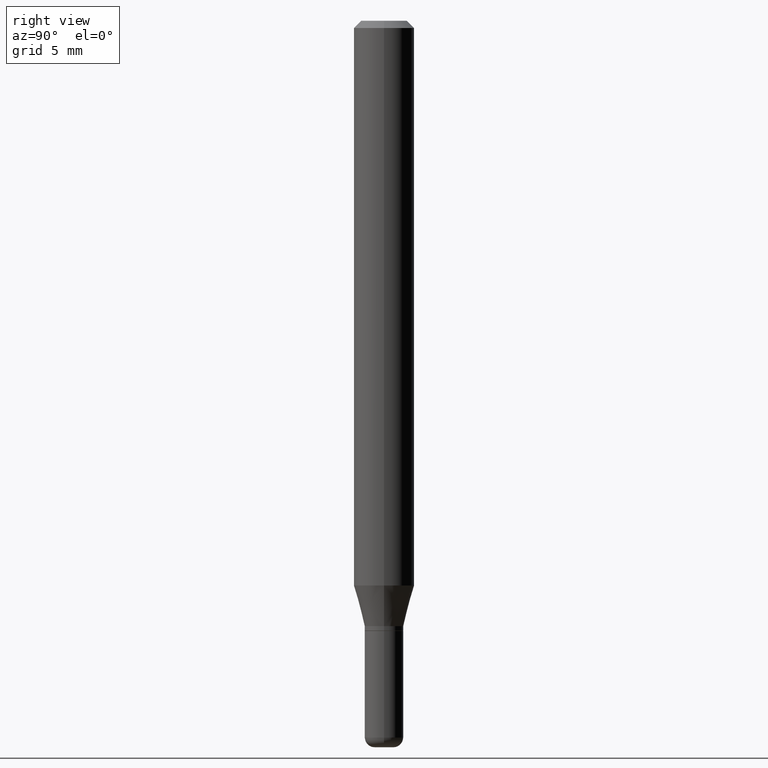
[diagram: clean part render]
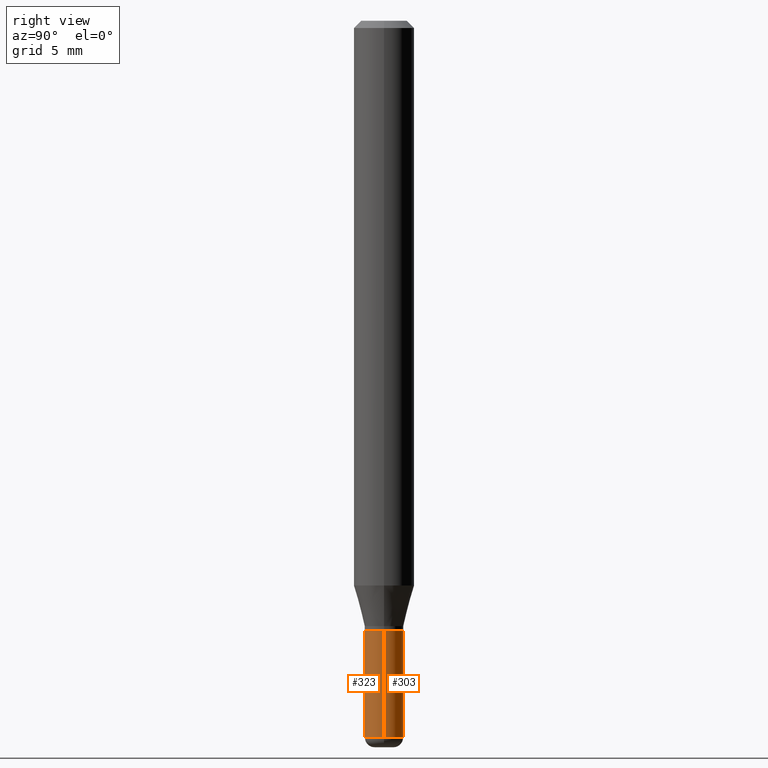
[diagram: same view with one multi-face feature highlighted, each face labeled with its STEP entity id]
A machine part, right view. The highlighted faces form ONE feature: a constant-radius fillet chain: 2 tangent blend faces with common blend radius 1.016 mm. The faces share edges in the B-rep.
Their STEP definitions:
[1] entity #323 (Cylinder):
#9 = CARTESIAN_POINT ( 'NONE',  ( 0.04000000000000003553, -5.446710888595306494E-15, -1.479999999999999982 ) ) ;
#18 = AXIS2_PLACEMENT_3D ( 'NONE', #277, #82, #78 ) ;
#29 = EDGE_CURVE ( 'NONE', #117, #224, #263, .T. ) ;
#38 = VERTEX_POINT ( 'NONE', #143 ) ;
#78 = DIRECTION ( 'NONE',  ( 1.000000000000000000, -6.982962677686259611E-15, 0.000000000000000000 ) ) ;
#82 = DIRECTION ( 'NONE',  ( -2.445468806185136597E-29, 3.491481338843145583E-15, 1.000000000000000000 ) ) ;
#90 = CARTESIAN_POINT ( 'NONE',  ( -0.04000000000000003553, -4.499112339911069567E-15, -1.479999999999999982 ) ) ;
#93 = AXIS2_PLACEMENT_3D ( 'NONE', #297, #175, #453 ) ;
#100 = CYLINDRICAL_SURFACE ( 'NONE', #93, 0.04000000000000001471 ) ;
#103 = CARTESIAN_POINT ( 'NONE',  ( 0.04000000000000001471, -2.793185071074507769E-16, 1.950470710318375438E-30 ) ) ;
#117 = VERTEX_POINT ( 'NONE', #90 ) ;
#143 = CARTESIAN_POINT ( 'NONE',  ( -0.04000000000000000083, -4.499112339911069567E-15, -1.260000000000000231 ) ) ;
#175 = DIRECTION ( 'NONE',  ( -2.445468806185136597E-29, 3.491481338843145583E-15, 1.000000000000000000 ) ) ;
#193 = ORIENTED_EDGE ( 'NONE', *, *, #250, .F. ) ;
#195 = VERTEX_POINT ( 'NONE', #245 ) ;
#209 = CIRCLE ( 'NONE', #18, 0.04000000000000000083 ) ;
#224 = VERTEX_POINT ( 'NONE', #9 ) ;
#226 = DIRECTION ( 'NONE',  ( -2.445468806185136597E-29, 3.491481338843145583E-15, 1.000000000000000000 ) ) ;
#233 = DIRECTION ( 'NONE',  ( 1.000000000000000000, -6.982962677686277755E-15, 0.000000000000000000 ) ) ;
#234 = EDGE_LOOP ( 'NONE', ( #193, #357, #384, #507 ) ) ;
#245 = CARTESIAN_POINT ( 'NONE',  ( 0.04000000000000000083, -4.678584994049814947E-15, -1.260000000000000231 ) ) ;
#248 = CARTESIAN_POINT ( 'NONE',  ( -0.04000000000000001471, 2.842170943040401789E-16, -1.967574036101963210E-30 ) ) ;
#250 = EDGE_CURVE ( 'NONE', #117, #38, #281, .T. ) ;
#261 = EDGE_CURVE ( 'NONE', #38, #195, #209, .T. ) ;
#263 = CIRCLE ( 'NONE', #510, 0.04000000000000003553 ) ;
#277 = CARTESIAN_POINT ( 'NONE',  ( 3.081290695793272291E-29, -4.399266486942364120E-15, -1.260000000000000231 ) ) ;
#281 = LINE ( 'NONE', #248, #351 ) ;
#297 = CARTESIAN_POINT ( 'NONE',  ( 0.000000000000000000, 0.000000000000000000, 0.000000000000000000 ) ) ;
#323 = ADVANCED_FACE ( 'NONE', ( #498 ), #100, .T. ) ;
#351 = VECTOR ( 'NONE', #406, 39.37007874015748143 ) ;
#357 = ORIENTED_EDGE ( 'NONE', *, *, #29, .T. ) ;
#382 = VECTOR ( 'NONE', #425, 39.37007874015748143 ) ;
#384 = ORIENTED_EDGE ( 'NONE', *, *, #412, .T. ) ;
#406 = DIRECTION ( 'NONE',  ( -2.445468806185136877E-29, 3.491481338843145188E-15, 1.000000000000000000 ) ) ;
#412 = EDGE_CURVE ( 'NONE', #224, #195, #505, .T. ) ;
#425 = DIRECTION ( 'NONE',  ( -2.445468806185136877E-29, 3.491481338843145188E-15, 1.000000000000000000 ) ) ;
#429 = CARTESIAN_POINT ( 'NONE',  ( 3.619293833154002365E-29, -5.167392381487854879E-15, -1.479999999999999982 ) ) ;
#453 = DIRECTION ( 'NONE',  ( 1.000000000000000000, -6.982962677686266711E-15, 4.876176775795936914E-29 ) ) ;
#498 = FACE_OUTER_BOUND ( 'NONE', #234, .T. ) ;
#505 = LINE ( 'NONE', #103, #382 ) ;
#507 = ORIENTED_EDGE ( 'NONE', *, *, #261, .F. ) ;
#510 = AXIS2_PLACEMENT_3D ( 'NONE', #429, #226, #233 ) ;
[2] entity #303 (Cylinder):
#8 = AXIS2_PLACEMENT_3D ( 'NONE', #371, #54, #454 ) ;
#9 = CARTESIAN_POINT ( 'NONE',  ( 0.04000000000000003553, -5.446710888595306494E-15, -1.479999999999999982 ) ) ;
#35 = DIRECTION ( 'NONE',  ( -2.445468806185136597E-29, 3.491481338843145583E-15, 1.000000000000000000 ) ) ;
#38 = VERTEX_POINT ( 'NONE', #143 ) ;
#41 = AXIS2_PLACEMENT_3D ( 'NONE', #44, #35, #80 ) ;
#44 = CARTESIAN_POINT ( 'NONE',  ( 3.619293833154002365E-29, -5.167392381487854879E-15, -1.479999999999999982 ) ) ;
#54 = DIRECTION ( 'NONE',  ( -2.445468806185136597E-29, 3.491481338843145583E-15, 1.000000000000000000 ) ) ;
#58 = ORIENTED_EDGE ( 'NONE', *, *, #412, .F. ) ;
#73 = EDGE_LOOP ( 'NONE', ( #385, #353, #191, #58 ) ) ;
#80 = DIRECTION ( 'NONE',  ( 1.000000000000000000, -6.982962677686277755E-15, 0.000000000000000000 ) ) ;
#84 = CIRCLE ( 'NONE', #41, 0.04000000000000003553 ) ;
#90 = CARTESIAN_POINT ( 'NONE',  ( -0.04000000000000003553, -4.499112339911069567E-15, -1.479999999999999982 ) ) ;
#103 = CARTESIAN_POINT ( 'NONE',  ( 0.04000000000000001471, -2.793185071074507769E-16, 1.950470710318375438E-30 ) ) ;
#117 = VERTEX_POINT ( 'NONE', #90 ) ;
#143 = CARTESIAN_POINT ( 'NONE',  ( -0.04000000000000000083, -4.499112339911069567E-15, -1.260000000000000231 ) ) ;
#171 = CYLINDRICAL_SURFACE ( 'NONE', #8, 0.04000000000000001471 ) ;
#177 = AXIS2_PLACEMENT_3D ( 'NONE', #206, #395, #241 ) ;
#191 = ORIENTED_EDGE ( 'NONE', *, *, #262, .F. ) ;
#195 = VERTEX_POINT ( 'NONE', #245 ) ;
#206 = CARTESIAN_POINT ( 'NONE',  ( 3.081290695793272291E-29, -4.399266486942364120E-15, -1.260000000000000231 ) ) ;
#224 = VERTEX_POINT ( 'NONE', #9 ) ;
#241 = DIRECTION ( 'NONE',  ( 1.000000000000000000, -6.982962677686259611E-15, 0.000000000000000000 ) ) ;
#245 = CARTESIAN_POINT ( 'NONE',  ( 0.04000000000000000083, -4.678584994049814947E-15, -1.260000000000000231 ) ) ;
#248 = CARTESIAN_POINT ( 'NONE',  ( -0.04000000000000001471, 2.842170943040401789E-16, -1.967574036101963210E-30 ) ) ;
#250 = EDGE_CURVE ( 'NONE', #117, #38, #281, .T. ) ;
#262 = EDGE_CURVE ( 'NONE', #195, #38, #360, .T. ) ;
#270 = EDGE_CURVE ( 'NONE', #224, #117, #84, .T. ) ;
#281 = LINE ( 'NONE', #248, #351 ) ;
#298 = FACE_OUTER_BOUND ( 'NONE', #73, .T. ) ;
#303 = ADVANCED_FACE ( 'NONE', ( #298 ), #171, .T. ) ;
#351 = VECTOR ( 'NONE', #406, 39.37007874015748143 ) ;
#353 = ORIENTED_EDGE ( 'NONE', *, *, #250, .T. ) ;
#360 = CIRCLE ( 'NONE', #177, 0.04000000000000000083 ) ;
#371 = CARTESIAN_POINT ( 'NONE',  ( 0.000000000000000000, 0.000000000000000000, 0.000000000000000000 ) ) ;
#382 = VECTOR ( 'NONE', #425, 39.37007874015748143 ) ;
#385 = ORIENTED_EDGE ( 'NONE', *, *, #270, .T. ) ;
#395 = DIRECTION ( 'NONE',  ( -2.445468806185136597E-29, 3.491481338843145583E-15, 1.000000000000000000 ) ) ;
#406 = DIRECTION ( 'NONE',  ( -2.445468806185136877E-29, 3.491481338843145188E-15, 1.000000000000000000 ) ) ;
#412 = EDGE_CURVE ( 'NONE', #224, #195, #505, .T. ) ;
#425 = DIRECTION ( 'NONE',  ( -2.445468806185136877E-29, 3.491481338843145188E-15, 1.000000000000000000 ) ) ;
#454 = DIRECTION ( 'NONE',  ( 1.000000000000000000, -6.982962677686266711E-15, 4.876176775795936914E-29 ) ) ;
#505 = LINE ( 'NONE', #103, #382 ) ;